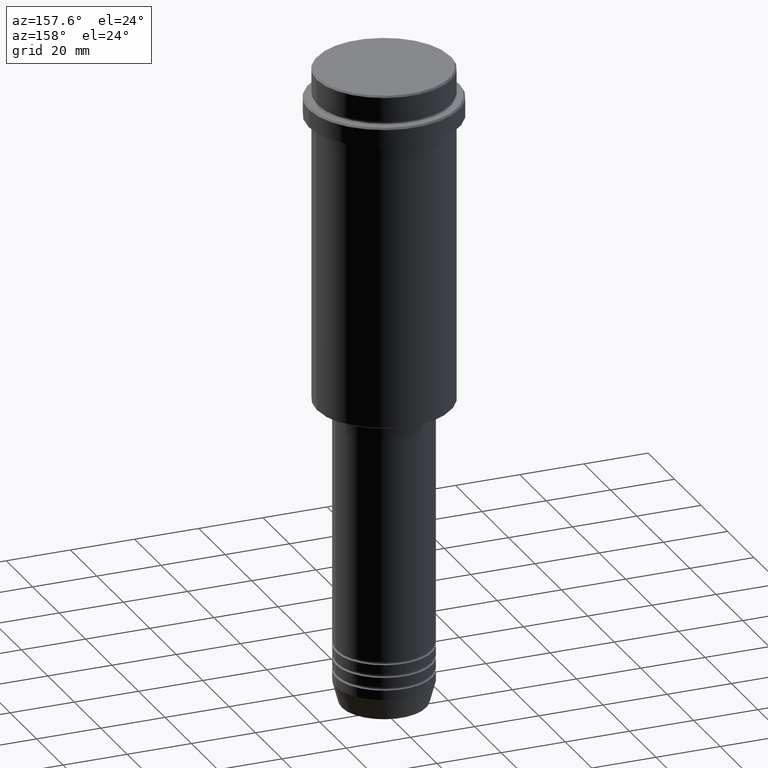
[diagram: clean part render]
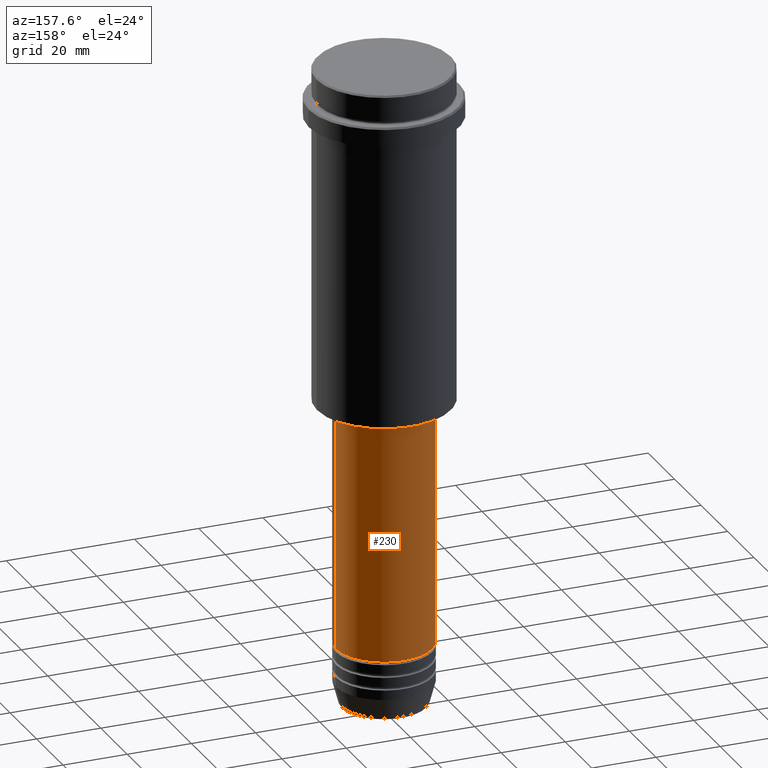
[diagram: same view with one face highlighted and labeled with its STEP entity id]
A machine part, auxiliary view. The second image highlights one B-rep face of the part: STEP entity #230.
In plain terms, the highlighted cylindrical surface (partial cylindrical patch) has radius 15 mm, axis along (-0, -0, 1).
Its self-contained STEP definition (entity closure, byte-faithful):
#25 = EDGE_CURVE ( 'NONE', #595, #800, #294, .T. ) ;
#65 = VERTEX_POINT ( 'NONE', #1065 ) ;
#80 = VECTOR ( 'NONE', #1401, 1000.000000000000000 ) ;
#103 = CIRCLE ( 'NONE', #1106, 15.00000000000000000 ) ;
#160 = EDGE_CURVE ( 'NONE', #800, #1023, #189, .T. ) ;
#189 = CIRCLE ( 'NONE', #1147, 15.00000000000000000 ) ;
#230 = ADVANCED_FACE ( 'NONE', ( #270 ), #389, .T. ) ;
#235 = DIRECTION ( 'NONE',  ( -0.000000000000000000, -0.000000000000000000, 1.000000000000000000 ) ) ;
#264 = CARTESIAN_POINT ( 'NONE',  ( 0.000000000000000000, 0.000000000000000000, -180.9999999999998863 ) ) ;
#270 = FACE_OUTER_BOUND ( 'NONE', #1198, .T. ) ;
#285 = DIRECTION ( 'NONE',  ( -0.000000000000000000, -0.000000000000000000, 1.000000000000000000 ) ) ;
#294 = LINE ( 'NONE', #1372, #917 ) ;
#303 = AXIS2_PLACEMENT_3D ( 'NONE', #727, #1350, #1048 ) ;
#389 = CYLINDRICAL_SURFACE ( 'NONE', #303, 15.00000000000000000 ) ;
#400 = CARTESIAN_POINT ( 'NONE',  ( 15.00000000000000000, 0.000000000000000000, -106.0000000000000142 ) ) ;
#410 = ORIENTED_EDGE ( 'NONE', *, *, #602, .T. ) ;
#464 = DIRECTION ( 'NONE',  ( 1.000000000000000000, 0.000000000000000000, 0.000000000000000000 ) ) ;
#595 = VERTEX_POINT ( 'NONE', #614 ) ;
#602 = EDGE_CURVE ( 'NONE', #595, #65, #103, .T. ) ;
#614 = CARTESIAN_POINT ( 'NONE',  ( 15.00000000000000000, 0.000000000000000000, -180.9999999999998863 ) ) ;
#665 = CARTESIAN_POINT ( 'NONE',  ( -15.00000000000000000, 1.836970198721029589E-15, -106.0000000000000142 ) ) ;
#724 = DIRECTION ( 'NONE',  ( -0.000000000000000000, -0.000000000000000000, 1.000000000000000000 ) ) ;
#727 = CARTESIAN_POINT ( 'NONE',  ( 0.000000000000000000, 0.000000000000000000, 0.000000000000000000 ) ) ;
#800 = VERTEX_POINT ( 'NONE', #400 ) ;
#834 = EDGE_CURVE ( 'NONE', #65, #1023, #953, .T. ) ;
#917 = VECTOR ( 'NONE', #724, 1000.000000000000000 ) ;
#927 = DIRECTION ( 'NONE',  ( 1.000000000000000000, 0.000000000000000000, 0.000000000000000000 ) ) ;
#953 = LINE ( 'NONE', #1394, #80 ) ;
#964 = ORIENTED_EDGE ( 'NONE', *, *, #25, .F. ) ;
#997 = ORIENTED_EDGE ( 'NONE', *, *, #834, .T. ) ;
#1023 = VERTEX_POINT ( 'NONE', #665 ) ;
#1048 = DIRECTION ( 'NONE',  ( 1.000000000000000000, 0.000000000000000000, 0.000000000000000000 ) ) ;
#1065 = CARTESIAN_POINT ( 'NONE',  ( -15.00000000000000000, 1.836970198721029589E-15, -180.9999999999998863 ) ) ;
#1106 = AXIS2_PLACEMENT_3D ( 'NONE', #264, #285, #927 ) ;
#1147 = AXIS2_PLACEMENT_3D ( 'NONE', #1295, #235, #464 ) ;
#1198 = EDGE_LOOP ( 'NONE', ( #410, #997, #1251, #964 ) ) ;
#1251 = ORIENTED_EDGE ( 'NONE', *, *, #160, .F. ) ;
#1295 = CARTESIAN_POINT ( 'NONE',  ( 0.000000000000000000, 0.000000000000000000, -106.0000000000000142 ) ) ;
#1350 = DIRECTION ( 'NONE',  ( -0.000000000000000000, -0.000000000000000000, 1.000000000000000000 ) ) ;
#1372 = CARTESIAN_POINT ( 'NONE',  ( 15.00000000000000000, 0.000000000000000000, 0.000000000000000000 ) ) ;
#1394 = CARTESIAN_POINT ( 'NONE',  ( -15.00000000000000000, 1.836970198721029589E-15, 0.000000000000000000 ) ) ;
#1401 = DIRECTION ( 'NONE',  ( -0.000000000000000000, -0.000000000000000000, 1.000000000000000000 ) ) ;